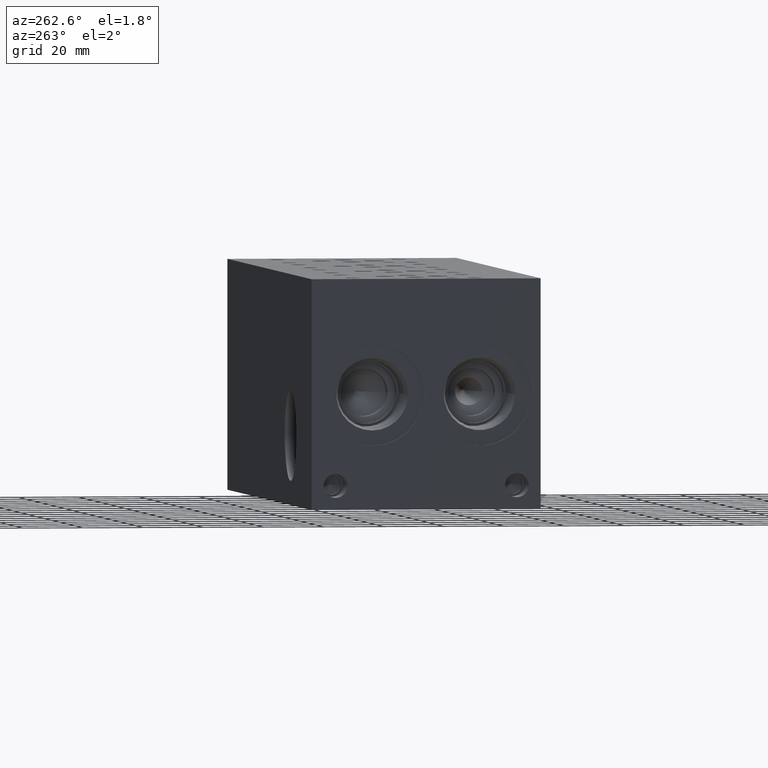
[diagram: clean part render]
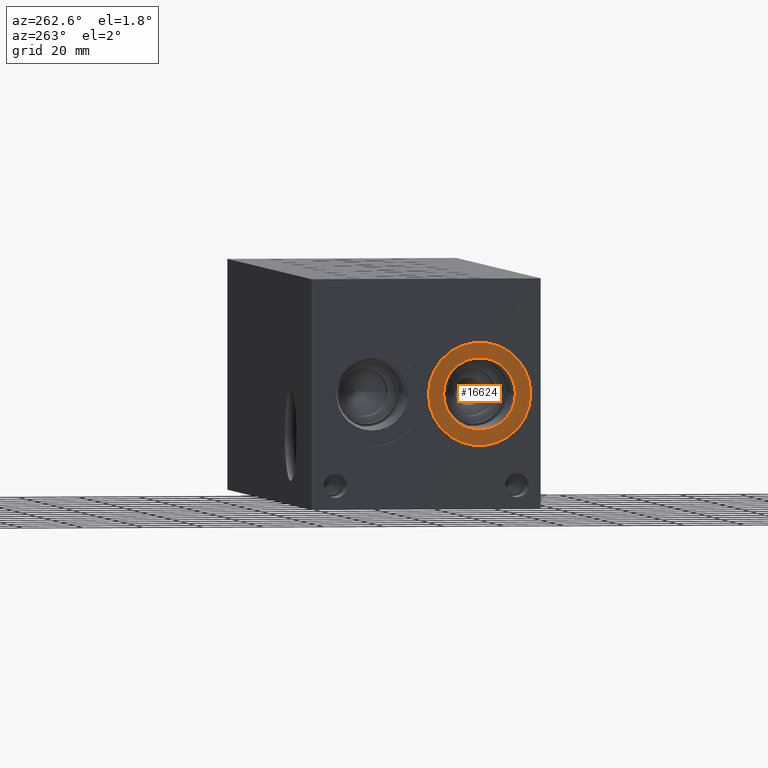
[diagram: same view with one face highlighted and labeled with its STEP entity id]
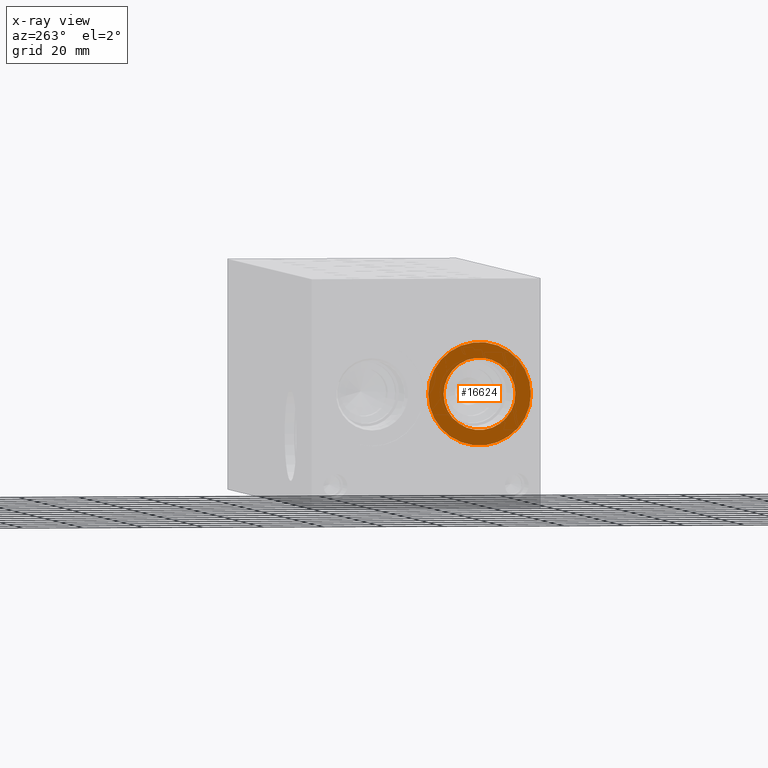
[diagram: x-ray of the same camera — body ghosted, the highlighted face saturated]
A machine part, auxiliary view. The second image highlights one B-rep face of the part: STEP entity #16624.
The next image is the same camera in x-ray: the body ghosted, the highlighted face saturated — about 0% of this face is hidden behind the body in this view.
In plain terms, the highlighted planar face has unit normal (-1, 0, 0).
Its self-contained STEP definition (entity closure, byte-faithful):
#532=CIRCLE('',#17592,17.0688);
#533=CIRCLE('',#17593,17.0688);
#534=CIRCLE('',#17594,11.9507);
#847=FACE_BOUND('',#3240,.T.);
#2264=FACE_OUTER_BOUND('',#3239,.T.);
#3239=EDGE_LOOP('',(#14215,#14216));
#3240=EDGE_LOOP('',(#14217));
#7636=VERTEX_POINT('',#28473);
#7637=VERTEX_POINT('',#28474);
#7638=VERTEX_POINT('',#28477);
#9902=EDGE_CURVE('',#7636,#7637,#532,.T.);
#9903=EDGE_CURVE('',#7637,#7636,#533,.T.);
#9904=EDGE_CURVE('',#7638,#7638,#534,.T.);
#14215=ORIENTED_EDGE('',*,*,#9902,.T.);
#14216=ORIENTED_EDGE('',*,*,#9903,.T.);
#14217=ORIENTED_EDGE('',*,*,#9904,.F.);
#15286=PLANE('',#17591);
#16624=ADVANCED_FACE('',(#2264,#847),#15286,.T.);
#17591=AXIS2_PLACEMENT_3D('',#28472,#20912,#20913);
#17592=AXIS2_PLACEMENT_3D('',#28475,#20914,#20915);
#17593=AXIS2_PLACEMENT_3D('',#28476,#20916,#20917);
#17594=AXIS2_PLACEMENT_3D('',#28478,#20918,#20919);
#20912=DIRECTION('center_axis',(-1.,0.,0.));
#20913=DIRECTION('ref_axis',(0.,1.,0.));
#20914=DIRECTION('center_axis',(-1.,0.,0.));
#20915=DIRECTION('ref_axis',(0.,1.,0.));
#20916=DIRECTION('center_axis',(-1.,0.,0.));
#20917=DIRECTION('ref_axis',(0.,1.,0.));
#20918=DIRECTION('center_axis',(-1.,0.,0.));
#20919=DIRECTION('ref_axis',(0.,1.,0.));
#28472=CARTESIAN_POINT('Origin',(0.7874,20.2438,38.1));
#28473=CARTESIAN_POINT('',(0.7874,37.3126,38.1));
#28474=CARTESIAN_POINT('',(0.7874,3.175,38.1));
#28475=CARTESIAN_POINT('Origin',(0.7874,20.2438,38.1));
#28476=CARTESIAN_POINT('Origin',(0.7874,20.2438,38.1));
#28477=CARTESIAN_POINT('',(0.7874,8.2931,38.1));
#28478=CARTESIAN_POINT('Origin',(0.7874,20.2438,38.1));